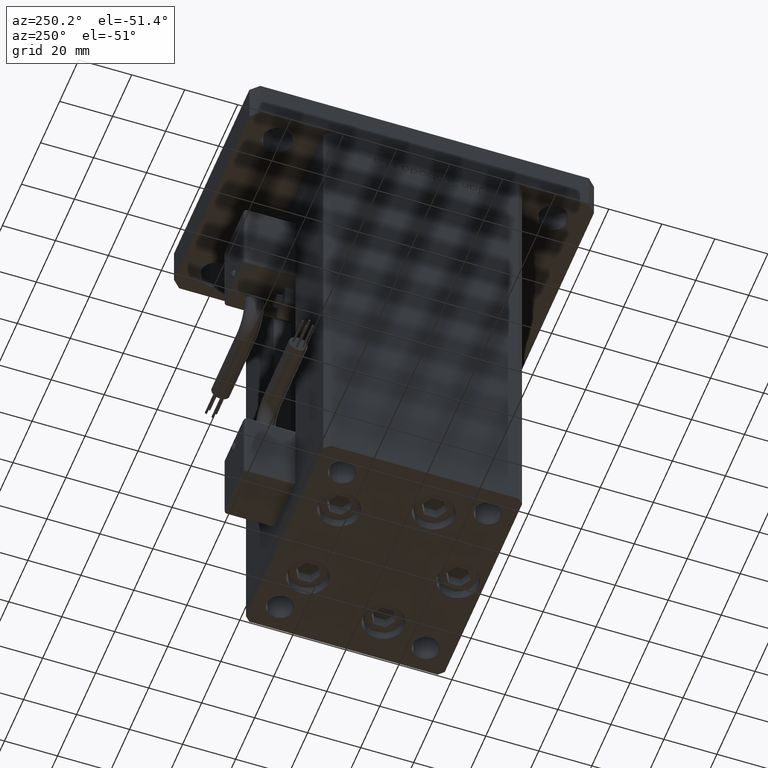
[diagram: clean part render]
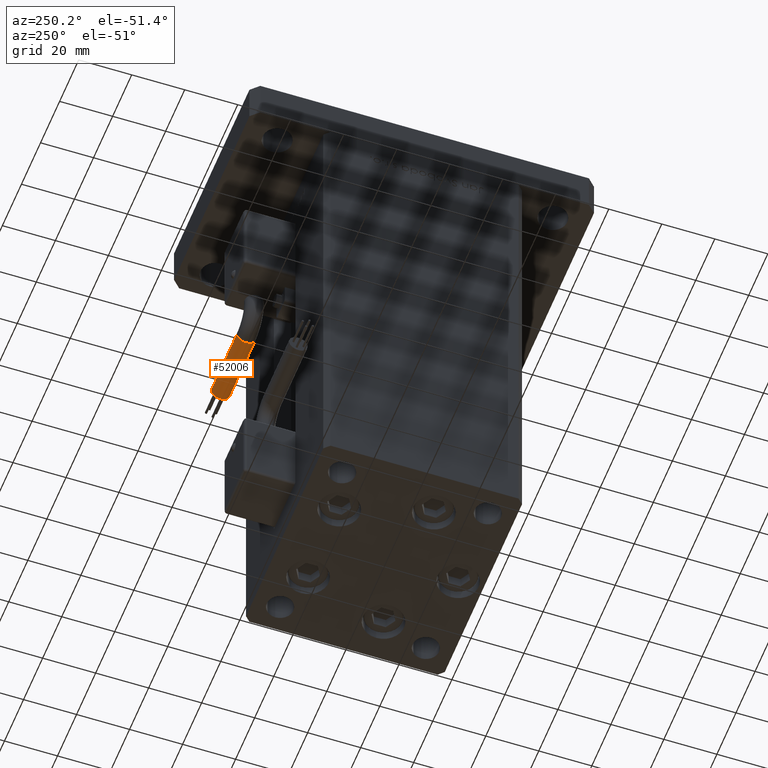
[diagram: same view with one face highlighted and labeled with its STEP entity id]
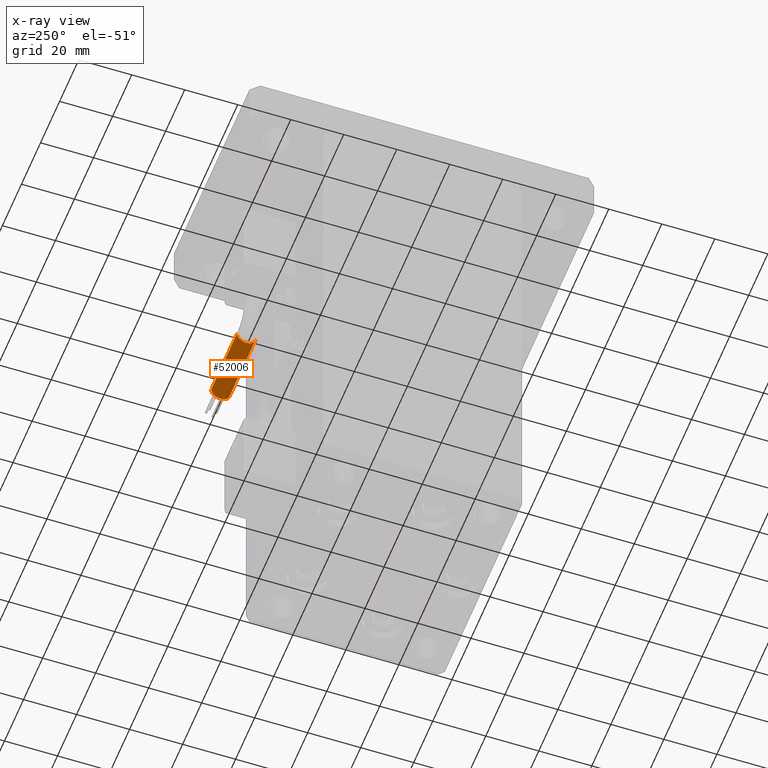
[diagram: x-ray of the same camera — body ghosted, the highlighted face saturated]
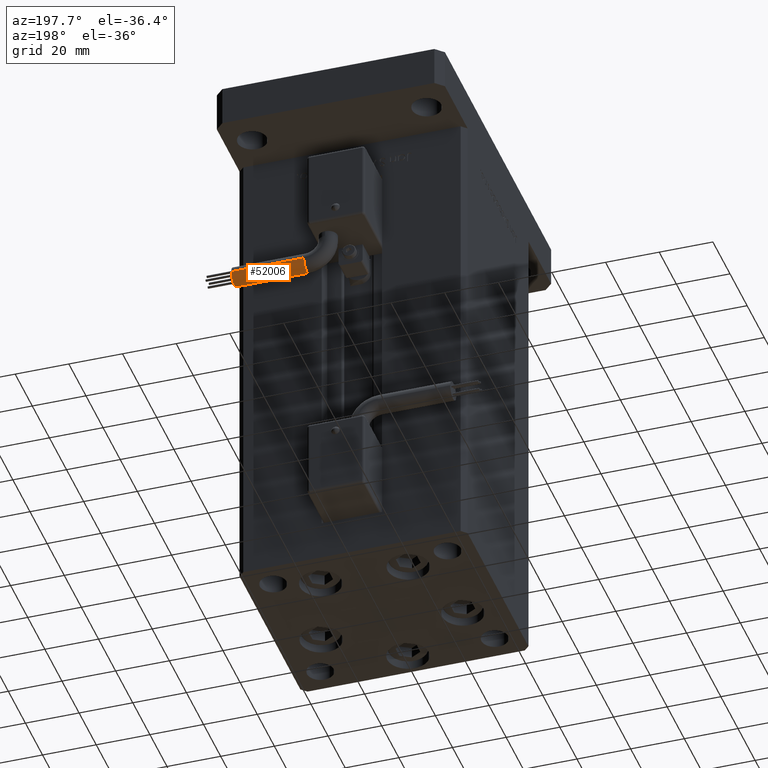
[diagram: same view with one face highlighted and labeled with its STEP entity id]
A machine part, auxiliary view. The second image highlights one B-rep face of the part: STEP entity #52006.
The next image is the same camera in x-ray: the body ghosted, the highlighted face saturated — about 0% of this face is hidden behind the body in this view.
A second angle (auxiliary view) of the same face is appended — the face is thin or edge-on in the first view.
In plain terms, the highlighted cylindrical surface (edge-blend (fillet) strip) has radius 3.5 mm, axis along (1, -0, 0).
Its self-contained STEP definition (entity closure, byte-faithful):
#1566 = CIRCLE ( 'NONE', #33386, 3.500000000000003109 ) ;
#3393 = LINE ( 'NONE', #29329, #45244 ) ;
#4654 = ORIENTED_EDGE ( 'NONE', *, *, #33108, .T. ) ;
#5016 = DIRECTION ( 'NONE',  ( 1.000000000000000000, -2.599999999999999847E-16, 2.220446049250000002E-16 ) ) ;
#7471 = CARTESIAN_POINT ( 'NONE',  ( 13.80000000000000071, 45.50000000000000711, -65.00000000000000000 ) ) ;
#7853 = CARTESIAN_POINT ( 'NONE',  ( 13.79999999999999893, 45.50000000000000711, -65.00000000000000000 ) ) ;
#8157 = FACE_OUTER_BOUND ( 'NONE', #40344, .T. ) ;
#9959 = DIRECTION ( 'NONE',  ( 1.000000000000000000, 0.000000000000000000, 2.220446049250000002E-16 ) ) ;
#10678 = CARTESIAN_POINT ( 'NONE',  ( 13.79999999999999893, 42.00000000000000000, -68.50000000000000000 ) ) ;
#13800 = VERTEX_POINT ( 'NONE', #28697 ) ;
#16710 = CYLINDRICAL_SURFACE ( 'NONE', #42468, 3.500000000000003109 ) ;
#16977 = EDGE_CURVE ( 'NONE', #50985, #23057, #1566, .T. ) ;
#16995 = CARTESIAN_POINT ( 'NONE',  ( 13.79999999999999893, 42.00000000000000000, -65.00000000000000000 ) ) ;
#22421 = CARTESIAN_POINT ( 'NONE',  ( 40.80000000000000426, 45.50000000000000711, -65.00000000000000000 ) ) ;
#22429 = VERTEX_POINT ( 'NONE', #24150 ) ;
#23057 = VERTEX_POINT ( 'NONE', #7853 ) ;
#23642 = CARTESIAN_POINT ( 'NONE',  ( 13.79999999999999893, 42.00000000000000000, -65.00000000000000000 ) ) ;
#24150 = CARTESIAN_POINT ( 'NONE',  ( 40.80000000000000426, 38.50000000000000000, -65.00000000000000000 ) ) ;
#25832 = EDGE_CURVE ( 'NONE', #22429, #31030, #36249, .T. ) ;
#27386 = CARTESIAN_POINT ( 'NONE',  ( 40.80000000000000426, 42.00000000000000000, -65.00000000000000000 ) ) ;
#28697 = CARTESIAN_POINT ( 'NONE',  ( 13.79999999999999893, 38.50000000000000000, -65.00000000000000000 ) ) ;
#29329 = CARTESIAN_POINT ( 'NONE',  ( 13.79999999999999716, 38.50000000000000000, -65.00000000000000000 ) ) ;
#31030 = VERTEX_POINT ( 'NONE', #22421 ) ;
#32072 = DIRECTION ( 'NONE',  ( -4.956352788505158337E-16, -1.000000000000000000, 0.000000000000000000 ) ) ;
#33108 = EDGE_CURVE ( 'NONE', #13800, #50985, #35550, .T. ) ;
#33386 = AXIS2_PLACEMENT_3D ( 'NONE', #43242, #34122, #38962 ) ;
#34122 = DIRECTION ( 'NONE',  ( 1.000000000000000000, 0.000000000000000000, 2.220446049250000002E-16 ) ) ;
#35362 = DIRECTION ( 'NONE',  ( 1.000000000000000000, 0.000000000000000000, 2.220446049250000002E-16 ) ) ;
#35550 = CIRCLE ( 'NONE', #36437, 3.500000000000003109 ) ;
#35771 = ORIENTED_EDGE ( 'NONE', *, *, #25832, .F. ) ;
#36090 = ORIENTED_EDGE ( 'NONE', *, *, #53574, .F. ) ;
#36230 = VECTOR ( 'NONE', #45411, 1000.000000000000000 ) ;
#36249 = CIRCLE ( 'NONE', #37200, 3.500000000000003109 ) ;
#36437 = AXIS2_PLACEMENT_3D ( 'NONE', #23642, #9959, #48743 ) ;
#37026 = DIRECTION ( 'NONE',  ( 1.000000000000000000, -2.599999999999999847E-16, 2.220446049250000002E-16 ) ) ;
#37200 = AXIS2_PLACEMENT_3D ( 'NONE', #27386, #35362, #45057 ) ;
#37399 = LINE ( 'NONE', #7471, #36230 ) ;
#38962 = DIRECTION ( 'NONE',  ( 0.000000000000000000, 0.000000000000000000, -1.000000000000000000 ) ) ;
#39006 = ORIENTED_EDGE ( 'NONE', *, *, #16977, .T. ) ;
#40344 = EDGE_LOOP ( 'NONE', ( #4654, #39006, #50641, #35771, #36090 ) ) ;
#42468 = AXIS2_PLACEMENT_3D ( 'NONE', #16995, #5016, #32072 ) ;
#43242 = CARTESIAN_POINT ( 'NONE',  ( 13.79999999999999893, 42.00000000000000000, -65.00000000000000000 ) ) ;
#45057 = DIRECTION ( 'NONE',  ( 0.000000000000000000, 0.000000000000000000, -1.000000000000000000 ) ) ;
#45244 = VECTOR ( 'NONE', #37026, 1000.000000000000000 ) ;
#45411 = DIRECTION ( 'NONE',  ( 1.000000000000000000, -2.599999999999999847E-16, 2.220446049250000002E-16 ) ) ;
#48743 = DIRECTION ( 'NONE',  ( 0.000000000000000000, 0.000000000000000000, -1.000000000000000000 ) ) ;
#50641 = ORIENTED_EDGE ( 'NONE', *, *, #55457, .T. ) ;
#50985 = VERTEX_POINT ( 'NONE', #10678 ) ;
#52006 = ADVANCED_FACE ( 'NONE', ( #8157 ), #16710, .T. ) ;
#53574 = EDGE_CURVE ( 'NONE', #13800, #22429, #3393, .T. ) ;
#55457 = EDGE_CURVE ( 'NONE', #23057, #31030, #37399, .T. ) ;